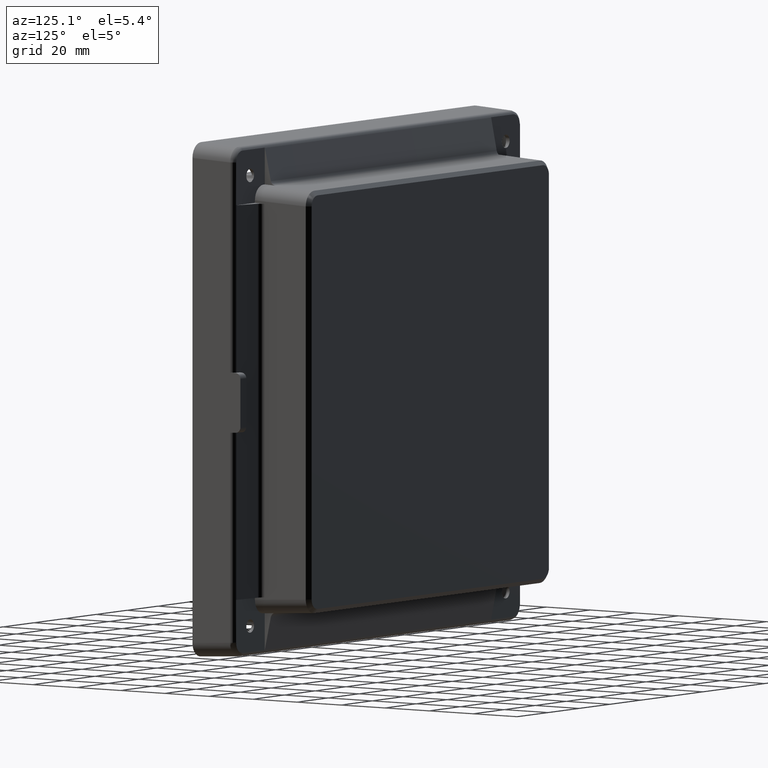
[diagram: clean part render]
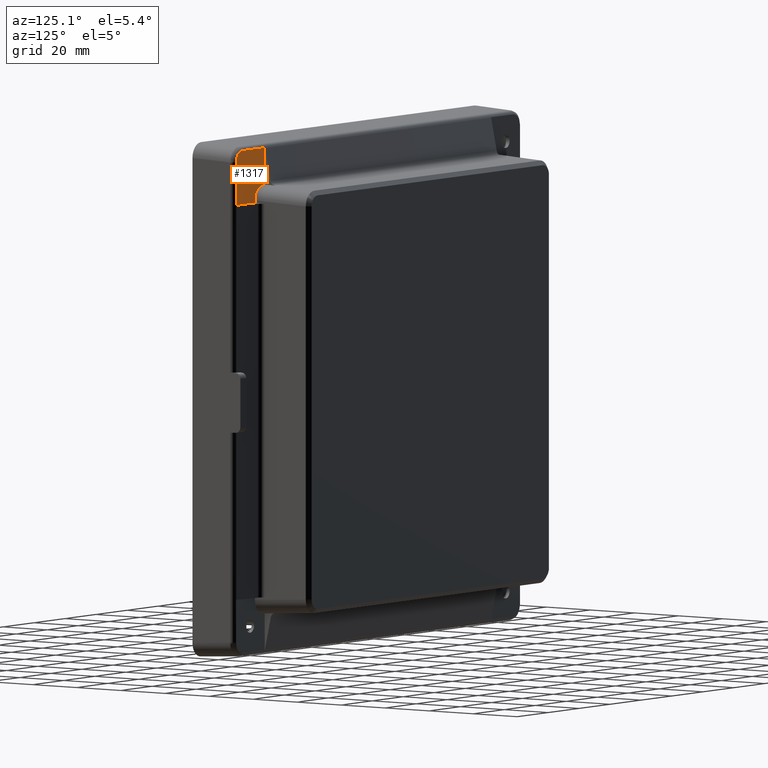
[diagram: same view with one face highlighted and labeled with its STEP entity id]
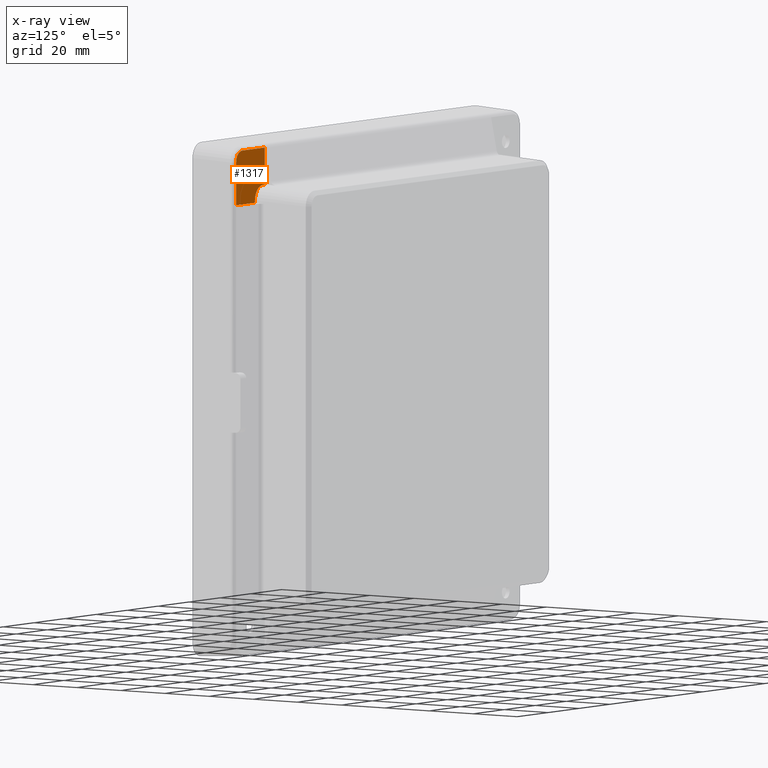
[diagram: x-ray of the same camera — body ghosted, the highlighted face saturated]
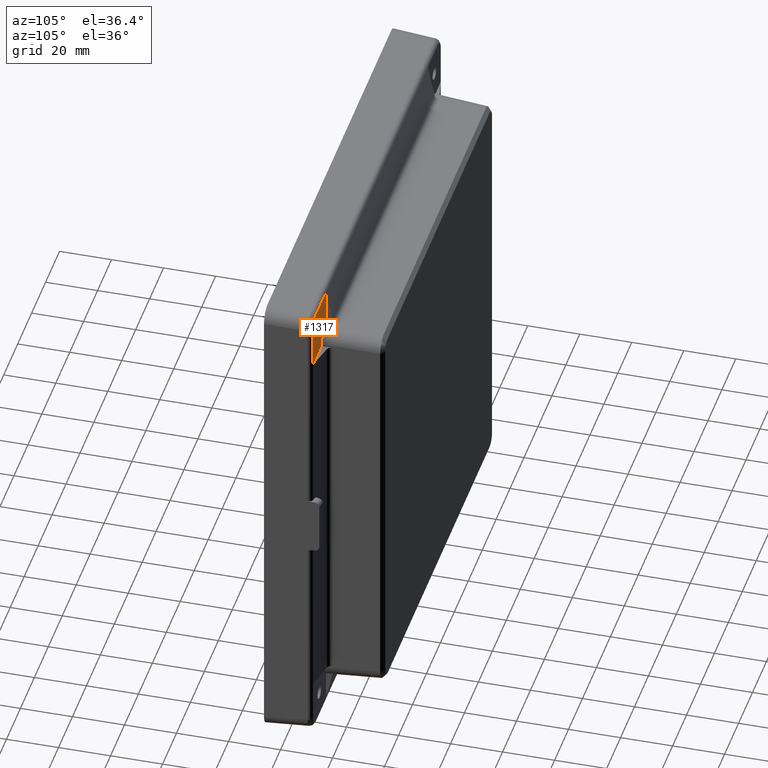
[diagram: same view with one face highlighted and labeled with its STEP entity id]
A machine part, auxiliary view. The second image highlights one B-rep face of the part: STEP entity #1317.
The next image is the same camera in x-ray: the body ghosted, the highlighted face saturated — about 0% of this face is hidden behind the body in this view.
A second angle (auxiliary view) of the same face is appended — the face is thin or edge-on in the first view.
In plain terms, the highlighted planar face has unit normal (0, 1, 0).
Its self-contained STEP definition (entity closure, byte-faithful):
#2 = CARTESIAN_POINT ( 'NONE',  ( 93.40000000000007700, 10.26305314132466200, 93.68264067045056700 ) ) ;
#100 = CARTESIAN_POINT ( 'NONE',  ( 88.81540378362554100, 10.26305314132466200, 93.47942887735509000 ) ) ;
#136 = AXIS2_PLACEMENT_3D ( 'NONE', #3120, #2458, #1789 ) ;
#178 = ORIENTED_EDGE ( 'NONE', *, *, #5218, .F. ) ;
#259 = CARTESIAN_POINT ( 'NONE',  ( 91.56798119111823600, 10.26305314132466200, 90.12002914153711700 ) ) ;
#450 = CARTESIAN_POINT ( 'NONE',  ( 87.21657028627464600, 10.26305314132466000, 93.68264067045058100 ) ) ;
#463 = AXIS2_PLACEMENT_3D ( 'NONE', #1065, #4227, #3579 ) ;
#475 = CIRCLE ( 'NONE', #2995, 2.499999999999988500 ) ;
#528 = EDGE_CURVE ( 'NONE', #4760, #2688, #3687, .T. ) ;
#539 = ORIENTED_EDGE ( 'NONE', *, *, #4891, .T. ) ;
#576 = PLANE ( 'NONE',  #2647 ) ;
#609 = EDGE_CURVE ( 'NONE', #1556, #5228, #6139, .T. ) ;
#626 = ORIENTED_EDGE ( 'NONE', *, *, #5802, .F. ) ;
#762 = CARTESIAN_POINT ( 'NONE',  ( 91.57980475627653000, 10.26305314132466200, 89.57734938703170300 ) ) ;
#764 = CIRCLE ( 'NONE', #3134, 2.499999999999988500 ) ;
#786 = CARTESIAN_POINT ( 'NONE',  ( 89.31779479687597200, 10.26305314132466200, 93.28586394526978200 ) ) ;
#907 = ORIENTED_EDGE ( 'NONE', *, *, #6102, .F. ) ;
#944 = CARTESIAN_POINT ( 'NONE',  ( 91.57980475627653000, 10.26305314132466200, 89.57734938703170300 ) ) ;
#1022 = VERTEX_POINT ( 'NONE', #3953 ) ;
#1065 = CARTESIAN_POINT ( 'NONE',  ( 81.67173718818628500, 10.26305314132466200, 81.98906488024425700 ) ) ;
#1132 = EDGE_CURVE ( 'NONE', #3726, #2198, #4324, .T. ) ;
#1134 = CARTESIAN_POINT ( 'NONE',  ( 87.30350179303005100, 10.26305314132466200, 93.68264067045058100 ) ) ;
#1153 = VERTEX_POINT ( 'NONE', #2870 ) ;
#1270 = CARTESIAN_POINT ( 'NONE',  ( 73.08475897172270700, 10.26305314132466200, 79.96213617619935100 ) ) ;
#1300 = EDGE_LOOP ( 'NONE', ( #2873, #4297, #4240, #1932, #3218, #178 ) ) ;
#1317 = ADVANCED_FACE ( 'NONE', ( #4022, #2971 ), #576, .T. ) ;
#1427 = VECTOR ( 'NONE', #5835, 1000.000000000000000 ) ;
#1459 = CARTESIAN_POINT ( 'NONE',  ( 89.56253227678777800, 10.26305314132466000, 93.16230718569339300 ) ) ;
#1488 = CARTESIAN_POINT ( 'NONE',  ( 91.57980475627653000, 10.26305314132466200, 89.57734938703170300 ) ) ;
#1553 = VECTOR ( 'NONE', #3028, 1000.000000000000000 ) ;
#1556 = VERTEX_POINT ( 'NONE', #762 ) ;
#1571 = CARTESIAN_POINT ( 'NONE',  ( 82.51926223426440300, 10.26305314132466200, 86.51926223426436000 ) ) ;
#1581 = B_SPLINE_CURVE_WITH_KNOTS ( 'NONE', 3,
 ( #3486, #2833, #2171, #1488 ),
 .UNSPECIFIED., .F., .F.,
 ( 4, 4 ),
 ( 0.0000000000000000000, 0.0002607945202661855000 ),
 .UNSPECIFIED. ) ;
#1669 = VECTOR ( 'NONE', #3428, 1000.000000000000000 ) ;
#1784 = CARTESIAN_POINT ( 'NONE',  ( 79.46213617619936500, 10.26305314132466200, 73.58475897172269200 ) ) ;
#1789 = DIRECTION ( 'NONE',  ( 0.0000000000000000000, 0.0000000000000000000, 1.000000000000000000 ) ) ;
#1813 = ORIENTED_EDGE ( 'NONE', *, *, #2169, .F. ) ;
#1816 = CARTESIAN_POINT ( 'NONE',  ( 87.39043850567195200, 10.26305314132466200, 93.68169831589465000 ) ) ;
#1821 = DIRECTION ( 'NONE',  ( -0.0000000000000000000, -0.0000000000000000000, 1.000000000000000000 ) ) ;
#1829 = EDGE_CURVE ( 'NONE', #4474, #5144, #6179, .T. ) ;
#1865 = AXIS2_PLACEMENT_3D ( 'NONE', #5021, #3718, #3063 ) ;
#1932 = ORIENTED_EDGE ( 'NONE', *, *, #2057, .F. ) ;
#2015 = ORIENTED_EDGE ( 'NONE', *, *, #1132, .T. ) ;
#2057 = EDGE_CURVE ( 'NONE', #3722, #6358, #764, .T. ) ;
#2142 = CARTESIAN_POINT ( 'NONE',  ( 90.01611526761999500, 10.26305314132466200, 92.86899418164763600 ) ) ;
#2169 = EDGE_CURVE ( 'NONE', #4474, #1022, #4731, .T. ) ;
#2171 = CARTESIAN_POINT ( 'NONE',  ( 91.58169831589469800, 10.26305314132466200, 89.49043850567190400 ) ) ;
#2198 = VERTEX_POINT ( 'NONE', #1270 ) ;
#2303 = CARTESIAN_POINT ( 'NONE',  ( 73.96967373504922700, 10.26305314132466200, 79.96213617619935100 ) ) ;
#2458 = DIRECTION ( 'NONE',  ( -0.0000000000000000000, -1.000000000000000000, -0.0000000000000000000 ) ) ;
#2484 = CARTESIAN_POINT ( 'NONE',  ( 87.47734938703175100, 10.26305314132466200, 93.67980475627649600 ) ) ;
#2488 = CARTESIAN_POINT ( 'NONE',  ( 73.08475897172270700, 10.26305314132466200, 97.08475897172269200 ) ) ;
#2528 = CARTESIAN_POINT ( 'NONE',  ( 73.08475897172270700, 10.26305314132466200, 93.68264067045056700 ) ) ;
#2647 = AXIS2_PLACEMENT_3D ( 'NONE', #5719, #5057, #4396 ) ;
#2650 = CARTESIAN_POINT ( 'NONE',  ( 87.47734938703175100, 10.26305314132466200, 93.67980475627649600 ) ) ;
#2688 = VERTEX_POINT ( 'NONE', #3981 ) ;
#2802 = CARTESIAN_POINT ( 'NONE',  ( 90.22508268454005500, 10.26305314132466200, 92.70019947067781600 ) ) ;
#2833 = CARTESIAN_POINT ( 'NONE',  ( 91.58264067045061600, 10.26305314132466200, 89.40350179303001700 ) ) ;
#2870 = CARTESIAN_POINT ( 'NONE',  ( 87.21657028627464600, 10.26305314132466000, 93.68264067045058100 ) ) ;
#2873 = ORIENTED_EDGE ( 'NONE', *, *, #528, .F. ) ;
#2959 = CARTESIAN_POINT ( 'NONE',  ( 80.41450892221291700, 10.26305314132466200, 82.67018347621937800 ) ) ;
#2971 = FACE_OUTER_BOUND ( 'NONE', #4320, .T. ) ;
#2995 = AXIS2_PLACEMENT_3D ( 'NONE', #4439, #3796, #3149 ) ;
#3028 = DIRECTION ( 'NONE',  ( -1.000000000000000000, -0.0000000000000000000, -0.0000000000000000000 ) ) ;
#3046 = CARTESIAN_POINT ( 'NONE',  ( 81.55616559099378500, 10.26305314132466200, 81.71221978651425400 ) ) ;
#3063 = DIRECTION ( 'NONE',  ( 0.0000000000000000000, 0.0000000000000000000, 1.000000000000000000 ) ) ;
#3071 = CARTESIAN_POINT ( 'NONE',  ( 79.46213617619938000, 10.26305314132466200, 74.46967373504919900 ) ) ;
#3120 = CARTESIAN_POINT ( 'NONE',  ( 73.96967373504922700, 10.26305314132466200, 74.46967373504919900 ) ) ;
#3134 = AXIS2_PLACEMENT_3D ( 'NONE', #5277, #4623, #3971 ) ;
#3149 = DIRECTION ( 'NONE',  ( 0.0000000000000000000, 0.0000000000000000000, 1.000000000000000000 ) ) ;
#3185 = ORIENTED_EDGE ( 'NONE', *, *, #1829, .T. ) ;
#3218 = ORIENTED_EDGE ( 'NONE', *, *, #6321, .F. ) ;
#3225 = EDGE_CURVE ( 'NONE', #5144, #4411, #5203, .T. ) ;
#3259 = VECTOR ( 'NONE', #4852, 1000.000000000000000 ) ;
#3338 = DIRECTION ( 'NONE',  ( 0.0000000000000000000, 0.0000000000000000000, 1.000000000000000000 ) ) ;
#3370 = LINE ( 'NONE', #2, #1427 ) ;
#3403 = CARTESIAN_POINT ( 'NONE',  ( 82.51926223426440300, 10.26305314132466200, 81.51926223426437400 ) ) ;
#3428 = DIRECTION ( 'NONE',  ( 0.0000000000000000000, -0.0000000000000000000, 1.000000000000000000 ) ) ;
#3456 = CARTESIAN_POINT ( 'NONE',  ( 90.60673246428270000, 10.26305314132466200, 92.31754257950352400 ) ) ;
#3459 = ORIENTED_EDGE ( 'NONE', *, *, #3225, .T. ) ;
#3486 = CARTESIAN_POINT ( 'NONE',  ( 91.58264067045061600, 10.26305314132466200, 89.31657028627462600 ) ) ;
#3566 = B_SPLINE_CURVE_WITH_KNOTS ( 'NONE', 3,
 ( #2484, #1816, #1134, #450 ),
 .UNSPECIFIED., .F., .F.,
 ( 4, 4 ),
 ( 0.0000000000000000000, 0.0002607945202662134200 ),
 .UNSPECIFIED. ) ;
#3579 = DIRECTION ( 'NONE',  ( 0.0000000000000000000, 0.0000000000000000000, -1.000000000000000000 ) ) ;
#3686 = CARTESIAN_POINT ( 'NONE',  ( 73.08475897172270700, 10.26305314132466200, 79.96213617619935100 ) ) ;
#3687 = CIRCLE ( 'NONE', #463, 0.3000000000000085900 ) ;
#3718 = DIRECTION ( 'NONE',  ( 0.0000000000000000000, 1.000000000000000000, 0.0000000000000000000 ) ) ;
#3722 = VERTEX_POINT ( 'NONE', #2959 ) ;
#3726 = VERTEX_POINT ( 'NONE', #2303 ) ;
#3796 = DIRECTION ( 'NONE',  ( 0.0000000000000000000, 1.000000000000000000, 0.0000000000000000000 ) ) ;
#3803 = LINE ( 'NONE', #2488, #5629 ) ;
#3893 = DIRECTION ( 'NONE',  ( 1.568262660196332000E-014, -0.0000000000000000000, 1.000000000000000000 ) ) ;
#3953 = CARTESIAN_POINT ( 'NONE',  ( 91.58264067045061600, 10.26305314132466200, 89.31657028627462600 ) ) ;
#3956 = DIRECTION ( 'NONE',  ( -0.7660444431189602500, -0.0000000000000000000, 0.6427876096865605700 ) ) ;
#3959 = CARTESIAN_POINT ( 'NONE',  ( 87.47734938703175100, 10.26305314132466200, 93.67980475627649600 ) ) ;
#3971 = DIRECTION ( 'NONE',  ( 0.0000000000000000000, 0.0000000000000000000, 1.000000000000000000 ) ) ;
#3981 = CARTESIAN_POINT ( 'NONE',  ( 81.47890090528027000, 10.26305314132466200, 81.75925154730856500 ) ) ;
#3989 = DIRECTION ( 'NONE',  ( 0.0000000000000000000, 1.000000000000000000, 0.0000000000000000000 ) ) ;
#3997 = ORIENTED_EDGE ( 'NONE', *, *, #6065, .F. ) ;
#4022 = FACE_BOUND ( 'NONE', #1300, .T. ) ;
#4085 = CARTESIAN_POINT ( 'NONE',  ( 91.58264067045061600, 10.26305314132466200, 95.50000000000002800 ) ) ;
#4107 = CARTESIAN_POINT ( 'NONE',  ( 91.58264067045061600, 10.26305314132466200, 73.58475897172269200 ) ) ;
#4116 = CARTESIAN_POINT ( 'NONE',  ( 90.77816533940664100, 10.26305314132466300, 92.10370192840193200 ) ) ;
#4227 = DIRECTION ( 'NONE',  ( -0.0000000000000000000, 1.000000000000000000, -0.0000000000000000000 ) ) ;
#4240 = ORIENTED_EDGE ( 'NONE', *, *, #6061, .F. ) ;
#4244 = VERTEX_POINT ( 'NONE', #2528 ) ;
#4297 = ORIENTED_EDGE ( 'NONE', *, *, #6121, .F. ) ;
#4320 = EDGE_LOOP ( 'NONE', ( #3185, #3459, #539, #2015, #4381, #626, #3997, #5830, #907, #1813 ) ) ;
#4324 = LINE ( 'NONE', #3686, #1553 ) ;
#4381 = ORIENTED_EDGE ( 'NONE', *, *, #5266, .T. ) ;
#4396 = DIRECTION ( 'NONE',  ( 0.0000000000000000000, -0.0000000000000000000, 1.000000000000000000 ) ) ;
#4411 = VERTEX_POINT ( 'NONE', #3071 ) ;
#4439 = CARTESIAN_POINT ( 'NONE',  ( 82.51926223426440300, 10.26305314132466200, 84.01926223426437400 ) ) ;
#4461 = VECTOR ( 'NONE', #3956, 1000.000000000000100 ) ;
#4465 = AXIS2_PLACEMENT_3D ( 'NONE', #5293, #3989, #3338 ) ;
#4474 = VERTEX_POINT ( 'NONE', #4107 ) ;
#4546 = CARTESIAN_POINT ( 'NONE',  ( 79.46213617619938000, 10.26305314132466200, 74.46967373504919900 ) ) ;
#4607 = CARTESIAN_POINT ( 'NONE',  ( 80.47424303675312300, 10.26305314132466200, 82.60225959424909100 ) ) ;
#4609 = CARTESIAN_POINT ( 'NONE',  ( 87.74934107658948800, 10.26305314132465800, 93.67387877242080700 ) ) ;
#4623 = DIRECTION ( 'NONE',  ( 0.0000000000000000000, 1.000000000000000000, 0.0000000000000000000 ) ) ;
#4731 = LINE ( 'NONE', #4085, #1669 ) ;
#4758 = CARTESIAN_POINT ( 'NONE',  ( 91.06839701822853800, 10.26305314132466200, 91.65125056211536500 ) ) ;
#4760 = VERTEX_POINT ( 'NONE', #3046 ) ;
#4852 = DIRECTION ( 'NONE',  ( -1.000000000000000000, -0.0000000000000000000, -0.0000000000000000000 ) ) ;
#4891 = EDGE_CURVE ( 'NONE', #4411, #3726, #5380, .T. ) ;
#5021 = CARTESIAN_POINT ( 'NONE',  ( 80.66707931965909500, 10.26305314132466200, 82.83207292718474000 ) ) ;
#5057 = DIRECTION ( 'NONE',  ( 0.0000000000000000000, 1.000000000000000000, 0.0000000000000000000 ) ) ;
#5144 = VERTEX_POINT ( 'NONE', #1784 ) ;
#5203 = LINE ( 'NONE', #4546, #5484 ) ;
#5218 = EDGE_CURVE ( 'NONE', #2688, #5310, #5264, .T. ) ;
#5228 = VERTEX_POINT ( 'NONE', #2650 ) ;
#5264 = LINE ( 'NONE', #4607, #4461 ) ;
#5266 = EDGE_CURVE ( 'NONE', #2198, #4244, #3803, .T. ) ;
#5267 = CARTESIAN_POINT ( 'NONE',  ( 88.01927551426825900, 10.26305314132466000, 93.64877784547420000 ) ) ;
#5277 = CARTESIAN_POINT ( 'NONE',  ( 82.51926223426440300, 10.26305314132466200, 84.01926223426437400 ) ) ;
#5293 = CARTESIAN_POINT ( 'NONE',  ( 82.51926223426440300, 10.26305314132466200, 84.01926223426437400 ) ) ;
#5310 = VERTEX_POINT ( 'NONE', #6123 ) ;
#5380 = CIRCLE ( 'NONE', #136, 5.492462441150147300 ) ;
#5412 = CARTESIAN_POINT ( 'NONE',  ( 91.19021633539554700, 10.26305314132466200, 91.40871898886661000 ) ) ;
#5459 = CIRCLE ( 'NONE', #4465, 2.499999999999988500 ) ;
#5484 = VECTOR ( 'NONE', #3893, 1000.000000000000000 ) ;
#5513 = CARTESIAN_POINT ( 'NONE',  ( 79.46213617619936500, 10.26305314132466200, 73.58475897172269200 ) ) ;
#5629 = VECTOR ( 'NONE', #1821, 1000.000000000000000 ) ;
#5719 = CARTESIAN_POINT ( 'NONE',  ( 73.96967373504922700, 10.26305314132466200, 74.46967373504919900 ) ) ;
#5802 = EDGE_CURVE ( 'NONE', #1153, #4244, #3370, .T. ) ;
#5830 = ORIENTED_EDGE ( 'NONE', *, *, #609, .F. ) ;
#5835 = DIRECTION ( 'NONE',  ( -1.000000000000000000, 0.0000000000000000000, 0.0000000000000000000 ) ) ;
#5854 = VERTEX_POINT ( 'NONE', #3403 ) ;
#5928 = CARTESIAN_POINT ( 'NONE',  ( 88.55408089668075900, 10.26305314132466200, 93.55138090086416000 ) ) ;
#6061 = EDGE_CURVE ( 'NONE', #6358, #5854, #475, .T. ) ;
#6065 = EDGE_CURVE ( 'NONE', #5228, #1153, #3566, .T. ) ;
#6088 = CARTESIAN_POINT ( 'NONE',  ( 91.48069700662661300, 10.26305314132466000, 90.64797037122910700 ) ) ;
#6102 = EDGE_CURVE ( 'NONE', #1022, #1556, #1581, .T. ) ;
#6121 = EDGE_CURVE ( 'NONE', #5854, #4760, #5459, .T. ) ;
#6123 = CARTESIAN_POINT ( 'NONE',  ( 80.47424303675312300, 10.26305314132466200, 82.60225959424909100 ) ) ;
#6139 = B_SPLINE_CURVE_WITH_KNOTS ( 'NONE', 3,
 ( #944, #259, #6088, #5412, #4758, #4116, #3456, #2802, #2142, #1459, #786, #100, #5928, #5267, #4609, #3959 ),
 .UNSPECIFIED., .F., .F.,
 ( 4, 2, 2, 2, 2, 2, 2, 4 ),
 ( 0.0000000000000000000, 0.001604646926026873200, 0.002406970389040302600, 0.003209293852053732000, 0.004011617315067161000, 0.004813940778080591300, 0.005616264241094020800, 0.006418587704107450200 ),
 .UNSPECIFIED. ) ;
#6179 = LINE ( 'NONE', #5513, #3259 ) ;
#6321 = EDGE_CURVE ( 'NONE', #5310, #3722, #6480, .T. ) ;
#6358 = VERTEX_POINT ( 'NONE', #1571 ) ;
#6480 = CIRCLE ( 'NONE', #1865, 0.2999999999999669600 ) ;